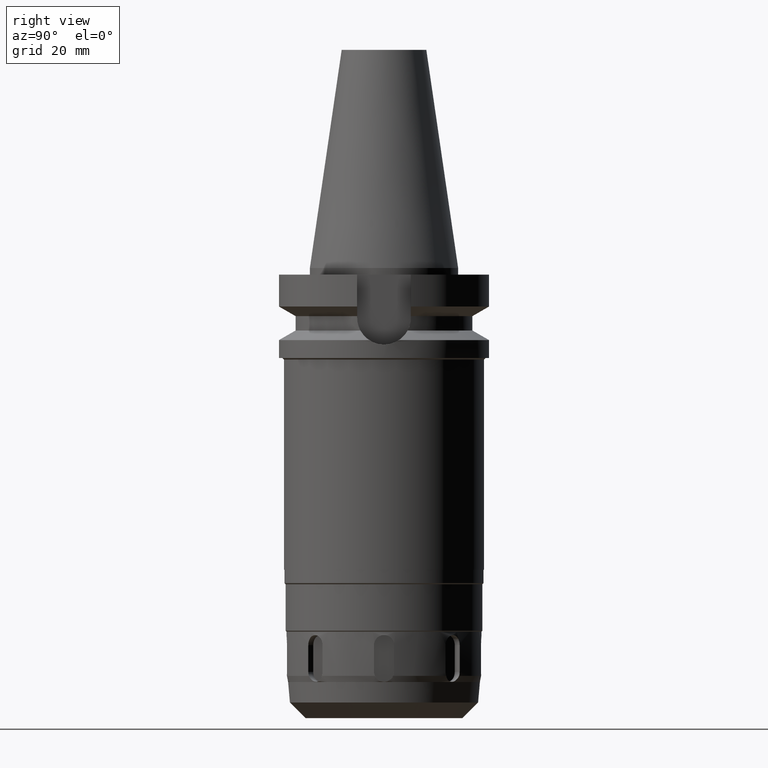
[diagram: clean part render]
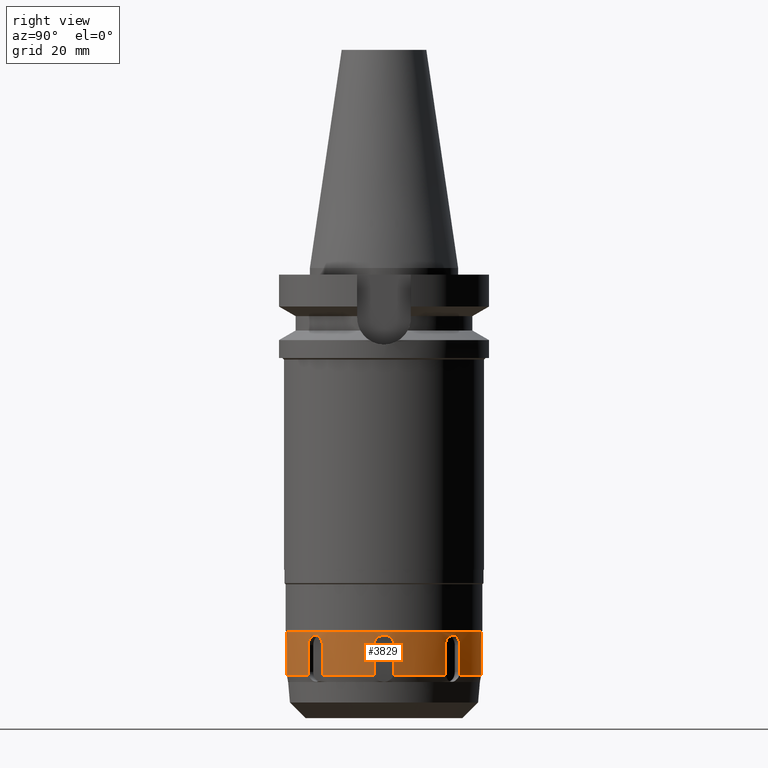
[diagram: same view with one face highlighted and labeled with its STEP entity id]
A machine part, right view. The second image highlights one B-rep face of the part: STEP entity #3829.
In plain terms, the highlighted cylindrical surface (partial cylindrical patch) has radius 29.25 mm, axis along (0, 0, -1).
Its self-contained STEP definition (entity closure, byte-faithful):
#815=CARTESIAN_POINT('',(0.E0,0.E0,-1.0905E2));
#816=DIRECTION('',(0.E0,0.E0,-1.E0));
#817=DIRECTION('',(0.E0,1.E0,0.E0));
#818=AXIS2_PLACEMENT_3D('',#815,#816,#817);
#922=CARTESIAN_POINT('',(0.E0,2.925E1,-1.101E2));
#927=DIRECTION('',(0.E0,-2.706829469562E-14,-1.E0));
#928=VECTOR('',#927,1.05E0);
#929=CARTESIAN_POINT('',(0.E0,-2.925E1,-1.0905E2));
#930=LINE('',#929,#928);
#1411=CARTESIAN_POINT('',(2.749621110969E0,-2.912051862559E1,
-1.222998193034E2));
#1416=CARTESIAN_POINT('',(0.E0,0.E0,-1.223E2));
#1417=DIRECTION('',(0.E0,0.E0,1.E0));
#1418=DIRECTION('',(9.400122992018E-2,-9.955720811541E-1,0.E0));
#1419=AXIS2_PLACEMENT_3D('',#1416,#1417,#1418);
#1434=CARTESIAN_POINT('',(2.253559193396E1,-1.864704044230E1,
-1.222998193540E2));
#1439=CARTESIAN_POINT('',(0.E0,0.E0,-1.223E2));
#1440=DIRECTION('',(0.E0,0.E0,1.E0));
#1441=DIRECTION('',(7.704446794789E-1,-6.375068594632E-1,0.E0));
#1442=AXIS2_PLACEMENT_3D('',#1439,#1440,#1441);
#1457=CARTESIAN_POINT('',(2.912051862044E1,2.749621127813E0,-1.222998193562E2));
#1462=CARTESIAN_POINT('',(0.E0,0.E0,-1.223E2));
#1463=DIRECTION('',(0.E0,0.E0,1.E0));
#1464=DIRECTION('',(9.955720807680E-1,9.400123400918E-2,0.E0));
#1465=AXIS2_PLACEMENT_3D('',#1462,#1463,#1464);
#1480=CARTESIAN_POINT('',(1.864704047083E1,2.253559191473E1,-1.222998193391E2));
#1485=CARTESIAN_POINT('',(0.E0,0.E0,-1.223E2));
#1486=DIRECTION('',(0.E0,0.E0,1.E0));
#1487=DIRECTION('',(6.375068626624E-1,7.704446768317E-1,0.E0));
#1488=AXIS2_PLACEMENT_3D('',#1485,#1486,#1487);
#1511=CARTESIAN_POINT('',(3.E0,-2.909574711191E1,-1.131E2));
#1512=CARTESIAN_POINT('',(3.E0,-2.909574711191E1,-1.128333555025E2));
#1513=CARTESIAN_POINT('',(2.931710590502E0,-2.910291120750E1,
-1.123197273565E2));
#1514=CARTESIAN_POINT('',(2.628531293828E0,-2.913253984782E1,
-1.115828430812E2));
#1515=CARTESIAN_POINT('',(2.146557765096E0,-2.917289973397E1,
-1.109557241495E2));
#1516=CARTESIAN_POINT('',(1.519670138591E0,-2.921324073590E1,
-1.104728548347E2));
#1517=CARTESIAN_POINT('',(7.821399923711E-1,-2.924283714058E1,
-1.101686624767E2));
#1518=CARTESIAN_POINT('',(2.673187356538E-1,-2.925E1,-1.101E2));
#1519=CARTESIAN_POINT('',(0.E0,-2.925E1,-1.101E2));
#1524=DIRECTION('',(0.E0,3.045183153258E-14,-1.E0));
#1525=VECTOR('',#1524,1.05E0);
#1526=CARTESIAN_POINT('',(0.E0,2.925E1,-1.0905E2));
#1527=LINE('',#1526,#1525);
#1531=CARTESIAN_POINT('',(0.E0,2.925E1,-1.101E2));
#1532=CARTESIAN_POINT('',(2.665799707871E-1,2.925E1,-1.101E2));
#1533=CARTESIAN_POINT('',(7.802520929350E-1,2.924287683295E1,
-1.101682859986E2));
#1534=CARTESIAN_POINT('',(1.517020648969E0,2.921337671957E1,-1.104713992844E2));
#1535=CARTESIAN_POINT('',(2.144173911084E0,2.917307965611E1,-1.109533385459E2));
#1536=CARTESIAN_POINT('',(2.627089510591E0,2.913267502002E1,-1.115802148251E2));
#1537=CARTESIAN_POINT('',(2.931340393536E0,2.910295046224E1,-1.123178667712E2));
#1538=CARTESIAN_POINT('',(3.E0,2.909574711191E1,-1.128326284618E2));
#1539=CARTESIAN_POINT('',(3.E0,2.909574711191E1,-1.131E2));
#1544=DIRECTION('',(1.671454273784E-7,-5.260629463482E-6,-9.999999999861E-1));
#1545=VECTOR('',#1544,8.000000016386E0);
#1546=CARTESIAN_POINT('',(3.E0,2.909574711191E1,-1.131E2));
#1547=LINE('',#1546,#1545);
#1551=CARTESIAN_POINT('',(3.000001337163E0,2.909570502687E1,-1.211000000163E2));
#1552=CARTESIAN_POINT('',(3.000001337163E0,2.909570502687E1,-1.212380714269E2));
#1553=CARTESIAN_POINT('',(2.981165189684E0,2.909771837708E1,-1.215111149217E2));
#1554=CARTESIAN_POINT('',(2.896701014829E0,2.910627572263E1,-1.219159556227E2));
#1555=CARTESIAN_POINT('',(2.804724860963E0,2.911527300193E1,-1.221735534152E2));
#1556=CARTESIAN_POINT('',(2.749540321389E0,2.912048347164E1,-1.222999978784E2));
#1561=CARTESIAN_POINT('',(1.864704047083E1,2.253559191473E1,-1.222998193391E2));
#1562=CARTESIAN_POINT('',(1.860435447768E1,2.257091257356E1,-1.221733661352E2));
#1563=CARTESIAN_POINT('',(1.853298247973E1,2.262949127636E1,-1.219160417835E2));
#1564=CARTESIAN_POINT('',(1.846718245795E1,2.268318633252E1,-1.215110890602E2));
#1565=CARTESIAN_POINT('',(1.845247743708E1,2.269512168721E1,-1.212380710340E2));
#1566=CARTESIAN_POINT('',(1.845247743708E1,2.269512168721E1,-1.211000000004E2));
#1571=DIRECTION('',(2.882349336833E-7,-1.571416499063E-7,9.999999999999E-1));
#1572=VECTOR('',#1571,8.000000000423E0);
#1573=CARTESIAN_POINT('',(1.845247743708E1,2.269512168721E1,-1.211000000004E2));
#1574=LINE('',#1573,#1572);
#1578=CARTESIAN_POINT('',(1.845247974296E1,2.269512043008E1,-1.131E2));
#1579=CARTESIAN_POINT('',(1.845247974296E1,2.269512043008E1,-1.128328759561E2));
#1580=CARTESIAN_POINT('',(1.850603438394E1,2.265173562270E1,-1.123185543612E2));
#1581=CARTESIAN_POINT('',(1.874172417501E1,2.245800363298E1,-1.115815928926E2));
#1582=CARTESIAN_POINT('',(1.911119865735E1,2.214560671227E1,-1.109548523061E2));
#1583=CARTESIAN_POINT('',(1.958289175167E1,2.173092335831E1,-1.104724526475E2));
#1584=CARTESIAN_POINT('',(2.012499537178E1,2.123062911397E1,-1.101686133245E2));
#1585=CARTESIAN_POINT('',(2.049393282405E1,2.087181387536E1,-1.101E2));
#1586=CARTESIAN_POINT('',(2.068287334971E1,2.068287334971E1,-1.101E2));
#1591=CARTESIAN_POINT('',(2.068287334971E1,2.068287334971E1,-1.101E2));
#1592=CARTESIAN_POINT('',(2.087132887911E1,2.049441782030E1,-1.101E2));
#1593=CARTESIAN_POINT('',(2.122945307997E1,2.012622505211E1,-1.101682513465E2));
#1594=CARTESIAN_POINT('',(2.172958027422E1,1.958438407179E1,-1.104713158501E2));
#1595=CARTESIAN_POINT('',(2.214459669006E1,1.911237609466E1,-1.109532607158E2));
#1596=CARTESIAN_POINT('',(2.245753160535E1,1.874229536364E1,-1.115801709631E2));
#1597=CARTESIAN_POINT('',(2.265166300801E1,1.850612454970E1,-1.123178513214E2));
#1598=CARTESIAN_POINT('',(2.269512043008E1,1.845247974296E1,-1.128326243670E2));
#1599=CARTESIAN_POINT('',(2.269512043008E1,1.845247974296E1,-1.131E2));
#1604=DIRECTION('',(-3.602739556634E-6,-3.835994732220E-6,-9.999999999862E-1));
#1605=VECTOR('',#1604,8.000000016384E0);
#1606=CARTESIAN_POINT('',(2.269512043008E1,1.845247974296E1,-1.131E2));
#1607=LINE('',#1606,#1605);
#1611=CARTESIAN_POINT('',(2.269509160816E1,1.845244905500E1,-1.211000000163E2));
#1612=CARTESIAN_POINT('',(2.269509160816E1,1.845244905500E1,-1.212380714271E2));
#1613=CARTESIAN_POINT('',(2.268319605589E1,1.846719191452E1,-1.215111149252E2));
#1614=CARTESIAN_POINT('',(2.262952191492E1,1.853296795528E1,-1.219159556418E2));
#1615=CARTESIAN_POINT('',(2.257084695865E1,1.860436698434E1,-1.221735534500E2));
#1616=CARTESIAN_POINT('',(2.253550996012E1,1.864707269908E1,-1.222999978907E2));
#1621=CARTESIAN_POINT('',(2.912051862044E1,2.749621127813E0,-1.222998193562E2));
#1622=CARTESIAN_POINT('',(2.911531054305E1,2.804780153040E0,-1.221733661757E2));
#1623=CARTESIAN_POINT('',(2.910626431840E1,2.896669219976E0,-1.219160418005E2));
#1624=CARTESIAN_POINT('',(2.909770482573E1,2.981164852483E0,-1.215110890644E2));
#1625=CARTESIAN_POINT('',(2.909574637580E1,3.000002500848E0,-1.212380710340E2));
#1626=CARTESIAN_POINT('',(2.909574637580E1,3.000002500848E0,-1.211000000004E2));
#1631=DIRECTION('',(9.201325212389E-8,-3.126060095063E-7,9.999999999999E-1));
#1632=VECTOR('',#1631,8.000000000419E0);
#1633=CARTESIAN_POINT('',(2.909574637580E1,3.000002500848E0,-1.211000000004E2));
#1634=LINE('',#1633,#1632);
#1638=CARTESIAN_POINT('',(2.909574711191E1,3.E0,-1.131E2));
#1639=CARTESIAN_POINT('',(2.909574711191E1,3.E0,-1.128329061968E2));
#1640=CARTESIAN_POINT('',(2.910293649239E1,2.931470247816E0,-1.123186347375E2));
#1641=CARTESIAN_POINT('',(2.913260160992E1,2.627863430818E0,-1.115816981684E2));
#1642=CARTESIAN_POINT('',(2.917295693030E1,2.145774769829E0,-1.109549903444E2));
#1643=CARTESIAN_POINT('',(2.921326504727E1,1.519141444753E0,-1.104726031421E2));
#1644=CARTESIAN_POINT('',(2.924283755966E1,7.820239203433E-1,
-1.101686600064E2));
#1645=CARTESIAN_POINT('',(2.925E1,2.672947152627E-1,-1.101E2));
#1646=CARTESIAN_POINT('',(2.925E1,0.E0,-1.101E2));
#1651=CARTESIAN_POINT('',(2.925E1,0.E0,-1.101E2));
#1652=CARTESIAN_POINT('',(2.925E1,-2.665324745345E-1,-1.101E2));
#1653=CARTESIAN_POINT('',(2.924287953767E1,-7.801377639901E-1,
-1.101682600111E2));
#1654=CARTESIAN_POINT('',(2.921338257850E1,-1.516913522872E0,
-1.104713354978E2));
#1655=CARTESIAN_POINT('',(2.917308456501E1,-2.144111554151E0,
-1.109532706321E2));
#1656=CARTESIAN_POINT('',(2.913267651880E1,-2.627074631022E0,
-1.115801793912E2));
#1657=CARTESIAN_POINT('',(2.910295013203E1,-2.931343660373E0,
-1.123178713935E2));
#1658=CARTESIAN_POINT('',(2.909574711191E1,-3.E0,-1.128326327424E2));
#1659=CARTESIAN_POINT('',(2.909574711191E1,-3.E0,-1.131E2));
#1664=DIRECTION('',(-5.259979233837E-6,-1.649362917308E-7,-9.999999999862E-1));
#1665=VECTOR('',#1664,8.000000016384E0);
#1666=CARTESIAN_POINT('',(2.909574711191E1,-3.E0,-1.131E2));
#1667=LINE('',#1666,#1665);
#1671=CARTESIAN_POINT('',(2.909570503207E1,-3.000001319490E0,
-1.211000000163E2));
#1672=CARTESIAN_POINT('',(2.909570503207E1,-3.000001319490E0,
-1.212380714271E2));
#1673=CARTESIAN_POINT('',(2.909771838233E1,-2.981165117875E0,
-1.215111149252E2));
#1674=CARTESIAN_POINT('',(2.910627571774E1,-2.896701084360E0,
-1.219159556418E2));
#1675=CARTESIAN_POINT('',(2.911527299590E1,-2.804724887262E0,
-1.221735534500E2));
#1676=CARTESIAN_POINT('',(2.912048346510E1,-2.749540355487E0,
-1.222999978908E2));
#1681=CARTESIAN_POINT('',(2.253559193396E1,-1.864704044230E1,
-1.222998193540E2));
#1682=CARTESIAN_POINT('',(2.257091258771E1,-1.860435445491E1,
-1.221733661734E2));
#1683=CARTESIAN_POINT('',(2.262949132265E1,-1.853298242648E1,
-1.219160418016E2));
#1684=CARTESIAN_POINT('',(2.268318628232E1,-1.846718251615E1,
-1.215110890641E2));
#1685=CARTESIAN_POINT('',(2.269512167794E1,-1.845247745409E1,
-1.212380710340E2));
#1686=CARTESIAN_POINT('',(2.269512167794E1,-1.845247745409E1,
-1.211000000004E2));
#1691=DIRECTION('',(-1.559826543403E-7,-2.861090599843E-7,9.999999999999E-1));
#1692=VECTOR('',#1691,8.000000000419E0);
#1693=CARTESIAN_POINT('',(2.269512167794E1,-1.845247745409E1,
-1.211000000004E2));
#1694=LINE('',#1693,#1692);
#1698=CARTESIAN_POINT('',(2.269512043008E1,-1.845247974296E1,-1.131E2));
#1699=CARTESIAN_POINT('',(2.269512043008E1,-1.845247974296E1,
-1.128333419745E2));
#1700=CARTESIAN_POINT('',(2.265189407627E1,-1.850583868193E1,
-1.123196871933E2));
#1701=CARTESIAN_POINT('',(2.245844238810E1,-1.874119609905E1,
-1.115827618782E2));
#1702=CARTESIAN_POINT('',(2.214613195448E1,-1.911059035495E1,
-1.109556079397E2));
#1703=CARTESIAN_POINT('',(2.173131534642E1,-1.958246138939E1,
-1.104727352569E2));
#1704=CARTESIAN_POINT('',(2.123073296856E1,-2.012489009576E1,
-1.101686209803E2));
#1705=CARTESIAN_POINT('',(2.087184017173E1,-2.049390652768E1,-1.101E2));
#1706=CARTESIAN_POINT('',(2.068287334971E1,-2.068287334971E1,-1.101E2));
#1711=CARTESIAN_POINT('',(2.068287334971E1,-2.068287334971E1,-1.101E2));
#1712=CARTESIAN_POINT('',(2.049419038181E1,-2.087155631760E1,-1.101E2));
#1713=CARTESIAN_POINT('',(2.012566179418E1,-2.122999069743E1,
-1.101684250313E2));
#1714=CARTESIAN_POINT('',(1.958380414201E1,-2.173010060499E1,
-1.104717730716E2));
#1715=CARTESIAN_POINT('',(1.911201280856E1,-2.214490711151E1,
-1.109537752745E2));
#1716=CARTESIAN_POINT('',(1.874220013556E1,-2.245760948286E1,
-1.115804584473E2));
#1717=CARTESIAN_POINT('',(1.850614791049E1,-2.265164390784E1,
-1.123178039357E2));
#1718=CARTESIAN_POINT('',(1.845247974296E1,-2.269512043008E1,
-1.128325865655E2));
#1719=CARTESIAN_POINT('',(1.845247974296E1,-2.269512043008E1,-1.131E2));
#1724=DIRECTION('',(-3.838069713290E-6,3.601608296661E-6,-9.999999999861E-1));
#1725=VECTOR('',#1724,8.000000016386E0);
#1726=CARTESIAN_POINT('',(1.845247974296E1,-2.269512043008E1,-1.131E2));
#1727=LINE('',#1726,#1725);
#1731=CARTESIAN_POINT('',(1.845244903840E1,-2.269509161721E1,
-1.211000000163E2));
#1732=CARTESIAN_POINT('',(1.845244903840E1,-2.269509161721E1,
-1.212380714271E2));
#1733=CARTESIAN_POINT('',(1.846719185714E1,-2.268319610535E1,
-1.215111149218E2));
#1734=CARTESIAN_POINT('',(1.853296800550E1,-2.262952187122E1,
-1.219159556244E2));
#1735=CARTESIAN_POINT('',(1.860436700623E1,-2.257084694501E1,
-1.221735534142E2));
#1736=CARTESIAN_POINT('',(1.864707272658E1,-2.253550994157E1,
-1.222999978772E2));
#1741=CARTESIAN_POINT('',(2.749621110969E0,-2.912051862559E1,
-1.222998193034E2));
#1742=CARTESIAN_POINT('',(2.804780138564E0,-2.911531054821E1,
-1.221733660976E2));
#1743=CARTESIAN_POINT('',(2.896669145789E0,-2.910626432359E1,
-1.219160418016E2));
#1744=CARTESIAN_POINT('',(2.981164932276E0,-2.909770481981E1,
-1.215110890553E2));
#1745=CARTESIAN_POINT('',(3.000002519636E0,-2.909574637027E1,
-1.212380710340E2));
#1746=CARTESIAN_POINT('',(3.000002519636E0,-2.909574637027E1,
-1.211000000004E2));
#1751=DIRECTION('',(-3.149545715730E-7,-9.270453382236E-8,9.999999999999E-1));
#1752=VECTOR('',#1751,8.000000000423E0);
#1753=CARTESIAN_POINT('',(3.000002519636E0,-2.909574637027E1,
-1.211000000004E2));
#1754=LINE('',#1753,#1752);
#2499=VERTEX_POINT('',#1411);
#2500=CARTESIAN_POINT('',(1.864708240243E1,-2.253550127858E1,-1.223E2));
#2501=VERTEX_POINT('',#2500);
#2502=VERTEX_POINT('',#1434);
#2503=CARTESIAN_POINT('',(2.912048417673E1,-2.749527470871E0,-1.223E2));
#2504=VERTEX_POINT('',#2503);
#2505=VERTEX_POINT('',#1457);
#2506=CARTESIAN_POINT('',(2.253550135252E1,1.864708231308E1,-1.223E2));
#2507=VERTEX_POINT('',#2506);
#2508=VERTEX_POINT('',#1480);
#2509=CARTESIAN_POINT('',(2.749527352453E0,2.912048418791E1,-1.223E2));
#2510=VERTEX_POINT('',#2509);
#2520=CARTESIAN_POINT('',(3.000002519636E0,-2.909574637027E1,
-1.211000000004E2));
#2521=VERTEX_POINT('',#2520);
#2546=VERTEX_POINT('',#922);
#2547=CARTESIAN_POINT('',(0.E0,2.925E1,-1.0905E2));
#2548=VERTEX_POINT('',#2547);
#2549=CARTESIAN_POINT('',(0.E0,-2.925E1,-1.0905E2));
#2550=VERTEX_POINT('',#2549);
#2551=CARTESIAN_POINT('',(0.E0,-2.925E1,-1.101E2));
#2552=VERTEX_POINT('',#2551);
#2574=VERTEX_POINT('',#1551);
#2581=VERTEX_POINT('',#1511);
#2582=VERTEX_POINT('',#1539);
#2583=VERTEX_POINT('',#1566);
#2584=CARTESIAN_POINT('',(1.845247974296E1,2.269512043008E1,-1.131E2));
#2585=VERTEX_POINT('',#2584);
#2586=VERTEX_POINT('',#1591);
#2587=VERTEX_POINT('',#1599);
#2588=CARTESIAN_POINT('',(2.269509160816E1,1.845244905500E1,-1.211000000163E2));
#2589=VERTEX_POINT('',#2588);
#2590=VERTEX_POINT('',#1626);
#2591=CARTESIAN_POINT('',(2.909574711191E1,3.E0,-1.131E2));
#2592=VERTEX_POINT('',#2591);
#2593=VERTEX_POINT('',#1651);
#2594=VERTEX_POINT('',#1659);
#2595=CARTESIAN_POINT('',(2.909570503207E1,-3.000001319490E0,
-1.211000000163E2));
#2596=VERTEX_POINT('',#2595);
#2597=VERTEX_POINT('',#1686);
#2598=CARTESIAN_POINT('',(2.269512043008E1,-1.845247974296E1,-1.131E2));
#2599=VERTEX_POINT('',#2598);
#2600=VERTEX_POINT('',#1711);
#2601=VERTEX_POINT('',#1719);
#2602=CARTESIAN_POINT('',(1.845244903840E1,-2.269509161721E1,
-1.211000000163E2));
#2603=VERTEX_POINT('',#2602);
#3768=CARTESIAN_POINT('',(0.E0,2.148275415064E-14,7.542E1));
#3769=DIRECTION('',(0.E0,0.E0,-1.E0));
#3770=DIRECTION('',(0.E0,-1.E0,0.E0));
#3771=AXIS2_PLACEMENT_3D('',#3768,#3769,#3770);
#3772=CYLINDRICAL_SURFACE('',#3771,2.925E1);
#3774=ORIENTED_EDGE('',*,*,#3773,.T.);
#3775=ORIENTED_EDGE('',*,*,#3440,.F.);
#3776=ORIENTED_EDGE('',*,*,#3395,.F.);
#3777=ORIENTED_EDGE('',*,*,#3437,.T.);
#3779=ORIENTED_EDGE('',*,*,#3778,.T.);
#3781=ORIENTED_EDGE('',*,*,#3780,.T.);
#3783=ORIENTED_EDGE('',*,*,#3782,.T.);
#3784=ORIENTED_EDGE('',*,*,#3757,.F.);
#3786=ORIENTED_EDGE('',*,*,#3785,.T.);
#3788=ORIENTED_EDGE('',*,*,#3787,.T.);
#3790=ORIENTED_EDGE('',*,*,#3789,.T.);
#3792=ORIENTED_EDGE('',*,*,#3791,.T.);
#3794=ORIENTED_EDGE('',*,*,#3793,.T.);
#3796=ORIENTED_EDGE('',*,*,#3795,.T.);
#3797=ORIENTED_EDGE('',*,*,#3753,.F.);
#3799=ORIENTED_EDGE('',*,*,#3798,.T.);
#3801=ORIENTED_EDGE('',*,*,#3800,.T.);
#3803=ORIENTED_EDGE('',*,*,#3802,.T.);
#3805=ORIENTED_EDGE('',*,*,#3804,.T.);
#3807=ORIENTED_EDGE('',*,*,#3806,.T.);
#3809=ORIENTED_EDGE('',*,*,#3808,.T.);
#3810=ORIENTED_EDGE('',*,*,#3749,.F.);
#3812=ORIENTED_EDGE('',*,*,#3811,.T.);
#3814=ORIENTED_EDGE('',*,*,#3813,.T.);
#3816=ORIENTED_EDGE('',*,*,#3815,.T.);
#3818=ORIENTED_EDGE('',*,*,#3817,.T.);
#3820=ORIENTED_EDGE('',*,*,#3819,.T.);
#3822=ORIENTED_EDGE('',*,*,#3821,.T.);
#3823=ORIENTED_EDGE('',*,*,#3745,.F.);
#3824=ORIENTED_EDGE('',*,*,#3734,.T.);
#3826=ORIENTED_EDGE('',*,*,#3825,.T.);
#3827=EDGE_LOOP('',(#3774,#3775,#3776,#3777,#3779,#3781,#3783,#3784,#3786,#3788,
#3790,#3792,#3794,#3796,#3797,#3799,#3801,#3803,#3805,#3807,#3809,#3810,#3812,
#3814,#3816,#3818,#3820,#3822,#3823,#3824,#3826));
#3828=FACE_OUTER_BOUND('',#3827,.F.);
#819=CIRCLE('',#818,2.925E1);
#1420=CIRCLE('',#1419,2.925E1);
#1443=CIRCLE('',#1442,2.925E1);
#1466=CIRCLE('',#1465,2.925E1);
#1489=CIRCLE('',#1488,2.925E1);
#1520=B_SPLINE_CURVE_WITH_KNOTS('',3,(#1511,#1512,#1513,#1514,#1515,#1516,#1517,
#1518,#1519),.UNSPECIFIED.,.F.,.F.,(4,1,1,1,1,1,4),(0.E0,1.666666666667E-1,
3.333333333333E-1,5.E-1,6.666666666667E-1,8.333333333333E-1,1.E0),
.UNSPECIFIED.);
#1540=B_SPLINE_CURVE_WITH_KNOTS('',3,(#1531,#1532,#1533,#1534,#1535,#1536,#1537,
#1538,#1539),.UNSPECIFIED.,.F.,.F.,(4,1,1,1,1,1,4),(0.E0,1.666666666667E-1,
3.333333333333E-1,5.E-1,6.666666666667E-1,8.333333333333E-1,1.E0),
.UNSPECIFIED.);
#1557=B_SPLINE_CURVE_WITH_KNOTS('',3,(#1551,#1552,#1553,#1554,#1555,#1556),
.UNSPECIFIED.,.F.,.F.,(4,1,1,4),(0.E0,3.333333333333E-1,6.666666666667E-1,1.E0),
.UNSPECIFIED.);
#1567=B_SPLINE_CURVE_WITH_KNOTS('',3,(#1561,#1562,#1563,#1564,#1565,#1566),
.UNSPECIFIED.,.F.,.F.,(4,1,1,4),(0.E0,3.333333333333E-1,6.666666666667E-1,1.E0),
.UNSPECIFIED.);
#1587=B_SPLINE_CURVE_WITH_KNOTS('',3,(#1578,#1579,#1580,#1581,#1582,#1583,#1584,
#1585,#1586),.UNSPECIFIED.,.F.,.F.,(4,1,1,1,1,1,4),(0.E0,1.666666666667E-1,
3.333333333333E-1,5.E-1,6.666666666667E-1,8.333333333333E-1,1.E0),
.UNSPECIFIED.);
#1600=B_SPLINE_CURVE_WITH_KNOTS('',3,(#1591,#1592,#1593,#1594,#1595,#1596,#1597,
#1598,#1599),.UNSPECIFIED.,.F.,.F.,(4,1,1,1,1,1,4),(0.E0,1.666666666667E-1,
3.333333333333E-1,5.E-1,6.666666666667E-1,8.333333333333E-1,1.E0),
.UNSPECIFIED.);
#1617=B_SPLINE_CURVE_WITH_KNOTS('',3,(#1611,#1612,#1613,#1614,#1615,#1616),
.UNSPECIFIED.,.F.,.F.,(4,1,1,4),(0.E0,3.333333333333E-1,6.666666666667E-1,1.E0),
.UNSPECIFIED.);
#1627=B_SPLINE_CURVE_WITH_KNOTS('',3,(#1621,#1622,#1623,#1624,#1625,#1626),
.UNSPECIFIED.,.F.,.F.,(4,1,1,4),(0.E0,3.333333333333E-1,6.666666666667E-1,1.E0),
.UNSPECIFIED.);
#1647=B_SPLINE_CURVE_WITH_KNOTS('',3,(#1638,#1639,#1640,#1641,#1642,#1643,#1644,
#1645,#1646),.UNSPECIFIED.,.F.,.F.,(4,1,1,1,1,1,4),(0.E0,1.666666666667E-1,
3.333333333333E-1,5.E-1,6.666666666667E-1,8.333333333333E-1,1.E0),
.UNSPECIFIED.);
#1660=B_SPLINE_CURVE_WITH_KNOTS('',3,(#1651,#1652,#1653,#1654,#1655,#1656,#1657,
#1658,#1659),.UNSPECIFIED.,.F.,.F.,(4,1,1,1,1,1,4),(0.E0,1.666666666667E-1,
3.333333333333E-1,5.E-1,6.666666666667E-1,8.333333333333E-1,1.E0),
.UNSPECIFIED.);
#1677=B_SPLINE_CURVE_WITH_KNOTS('',3,(#1671,#1672,#1673,#1674,#1675,#1676),
.UNSPECIFIED.,.F.,.F.,(4,1,1,4),(0.E0,3.333333333333E-1,6.666666666667E-1,1.E0),
.UNSPECIFIED.);
#1687=B_SPLINE_CURVE_WITH_KNOTS('',3,(#1681,#1682,#1683,#1684,#1685,#1686),
.UNSPECIFIED.,.F.,.F.,(4,1,1,4),(0.E0,3.333333333333E-1,6.666666666667E-1,1.E0),
.UNSPECIFIED.);
#1707=B_SPLINE_CURVE_WITH_KNOTS('',3,(#1698,#1699,#1700,#1701,#1702,#1703,#1704,
#1705,#1706),.UNSPECIFIED.,.F.,.F.,(4,1,1,1,1,1,4),(0.E0,1.666666666667E-1,
3.333333333333E-1,5.E-1,6.666666666667E-1,8.333333333333E-1,1.E0),
.UNSPECIFIED.);
#1720=B_SPLINE_CURVE_WITH_KNOTS('',3,(#1711,#1712,#1713,#1714,#1715,#1716,#1717,
#1718,#1719),.UNSPECIFIED.,.F.,.F.,(4,1,1,1,1,1,4),(0.E0,1.666666666667E-1,
3.333333333333E-1,5.E-1,6.666666666667E-1,8.333333333333E-1,1.E0),
.UNSPECIFIED.);
#1737=B_SPLINE_CURVE_WITH_KNOTS('',3,(#1731,#1732,#1733,#1734,#1735,#1736),
.UNSPECIFIED.,.F.,.F.,(4,1,1,4),(0.E0,3.333333333333E-1,6.666666666667E-1,1.E0),
.UNSPECIFIED.);
#1747=B_SPLINE_CURVE_WITH_KNOTS('',3,(#1741,#1742,#1743,#1744,#1745,#1746),
.UNSPECIFIED.,.F.,.F.,(4,1,1,4),(0.E0,3.333333333333E-1,6.666666666667E-1,1.E0),
.UNSPECIFIED.);
#3395=EDGE_CURVE('',#2548,#2550,#819,.T.);
#3437=EDGE_CURVE('',#2548,#2546,#1527,.T.);
#3440=EDGE_CURVE('',#2550,#2552,#930,.T.);
#3734=EDGE_CURVE('',#2499,#2521,#1747,.T.);
#3745=EDGE_CURVE('',#2499,#2501,#1420,.T.);
#3749=EDGE_CURVE('',#2502,#2504,#1443,.T.);
#3753=EDGE_CURVE('',#2505,#2507,#1466,.T.);
#3757=EDGE_CURVE('',#2508,#2510,#1489,.T.);
#3773=EDGE_CURVE('',#2581,#2552,#1520,.T.);
#3778=EDGE_CURVE('',#2546,#2582,#1540,.T.);
#3780=EDGE_CURVE('',#2582,#2574,#1547,.T.);
#3782=EDGE_CURVE('',#2574,#2510,#1557,.T.);
#3785=EDGE_CURVE('',#2508,#2583,#1567,.T.);
#3787=EDGE_CURVE('',#2583,#2585,#1574,.T.);
#3789=EDGE_CURVE('',#2585,#2586,#1587,.T.);
#3791=EDGE_CURVE('',#2586,#2587,#1600,.T.);
#3793=EDGE_CURVE('',#2587,#2589,#1607,.T.);
#3795=EDGE_CURVE('',#2589,#2507,#1617,.T.);
#3798=EDGE_CURVE('',#2505,#2590,#1627,.T.);
#3800=EDGE_CURVE('',#2590,#2592,#1634,.T.);
#3802=EDGE_CURVE('',#2592,#2593,#1647,.T.);
#3804=EDGE_CURVE('',#2593,#2594,#1660,.T.);
#3806=EDGE_CURVE('',#2594,#2596,#1667,.T.);
#3808=EDGE_CURVE('',#2596,#2504,#1677,.T.);
#3811=EDGE_CURVE('',#2502,#2597,#1687,.T.);
#3813=EDGE_CURVE('',#2597,#2599,#1694,.T.);
#3815=EDGE_CURVE('',#2599,#2600,#1707,.T.);
#3817=EDGE_CURVE('',#2600,#2601,#1720,.T.);
#3819=EDGE_CURVE('',#2601,#2603,#1727,.T.);
#3821=EDGE_CURVE('',#2603,#2501,#1737,.T.);
#3825=EDGE_CURVE('',#2521,#2581,#1754,.T.);
#3829=ADVANCED_FACE('',(#3828),#3772,.T.);